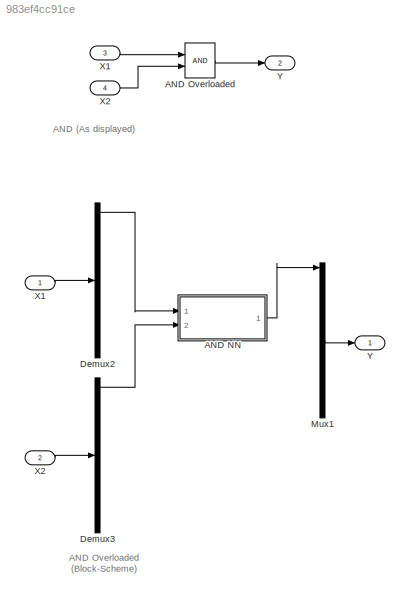
MODEL slx_983ef4cc91ce
KIND model
CONFIG AbsTol = auto
CONFIG EnableMultiTasking = off
CONFIG FixedStep = auto
CONFIG MaxStep = auto
CONFIG MinStep = auto
CONFIG RelTol = 1e-3
CONFIG SampleTimeConstraint = Unconstrained
CONFIG Solver = VariableStepAuto
CONFIG SolverName = VariableStepAuto
CONFIG StartTime = 0.0
CONFIG StopTime = 10.0
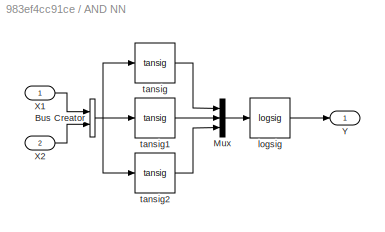
BLOCK [SubSystem] AND NN
  Ports = [2, 1]
  RequestExecContextInheritance = off
BLOCK [BusCreator] AND NN/Bus Creator
  DisplayOption = bar
  InheritFromInputs = on
  Inputs = 2
  Ports = [2, 1]
BLOCK [Mux] AND NN/Mux
  DisplayOption = bar
  Inputs = 3
  Ports = [3, 1]
BLOCK [Inport] AND NN/X1
  IconDisplay = Port number
BLOCK [Inport] AND NN/X2
  IconDisplay = Port number
  Port = 2
BLOCK [Outport] AND NN/Y
  IconDisplay = Port number
BLOCK [Reference] AND NN/logsig  REF=neural/Transfer Functions/logsig
  Ports = [1, 1]
  SourceBlock = neural/Transfer Functions/logsig
  SourceType = LOGSIG
BLOCK [Reference] AND NN/tansig  REF=neural/Transfer Functions/tansig
  Ports = [1, 1]
  SourceBlock = neural/Transfer Functions/tansig
  SourceType = TANSIG
BLOCK [Reference] AND NN/tansig1  REF=neural/Transfer Functions/tansig
  Ports = [1, 1]
  SourceBlock = neural/Transfer Functions/tansig
  SourceType = TANSIG
BLOCK [Reference] AND NN/tansig2  REF=neural/Transfer Functions/tansig
  Ports = [1, 1]
  SourceBlock = neural/Transfer Functions/tansig
  SourceType = TANSIG
BLOCK [Logic] AND Overloaded
  AllPortsSameDT = off
  OutDataTypeStr = boolean
  Ports = [2, 1]
BLOCK [Demux] Demux2
  DisplayOption = bar
  Outputs = 32
  Ports = [1, 32]
BLOCK [Demux] Demux3
  DisplayOption = bar
  Outputs = 32
  Ports = [1, 32]
BLOCK [Mux] Mux1
  DisplayOption = bar
  Inputs = 32
  Ports = [32, 1]
BLOCK [Inport] X1
  IconDisplay = Port number
  Port = 3
BLOCK [Inport] X1 
  IconDisplay = Port number
BLOCK [Inport] X2
  IconDisplay = Port number
  Port = 4
BLOCK [Inport] X2 
  IconDisplay = Port number
  Port = 2
BLOCK [Outport] Y
  IconDisplay = Port number
  Port = 2
BLOCK [Outport] Y 
  IconDisplay = Port number
ANNOTATION (root): AND (As displayed)
ANNOTATION (root): AND Overloaded (Block-Scheme)
NET AND NN/Bus Creator:1 -> AND NN/tansig1:1, AND NN/tansig2:1, AND NN/tansig:1
LINE AND NN/Mux:1 -> AND NN/logsig:1
LINE AND NN/X1:1 -> AND NN/Bus Creator:1
LINE AND NN/X2:1 -> AND NN/Bus Creator:2
LINE AND NN/logsig:1 -> AND NN/Y:1
LINE AND NN/tansig1:1 -> AND NN/Mux:2
LINE AND NN/tansig2:1 -> AND NN/Mux:3
LINE AND NN/tansig:1 -> AND NN/Mux:1
LINE AND NN:1 -> Mux1:1
LINE AND Overloaded:1 -> Y:1
LINE Demux2:2 -> AND NN:1
LINE Demux3:2 -> AND NN:2
LINE Mux1:1 -> Y :1
LINE X1 :1 -> Demux2:1
LINE X1:1 -> AND Overloaded:1
LINE X2 :1 -> Demux3:1
LINE X2:1 -> AND Overloaded:2
note: NET lines group one-source signal fan-out (src -> all destinations, sorted); 1:1 wires keep LINE
